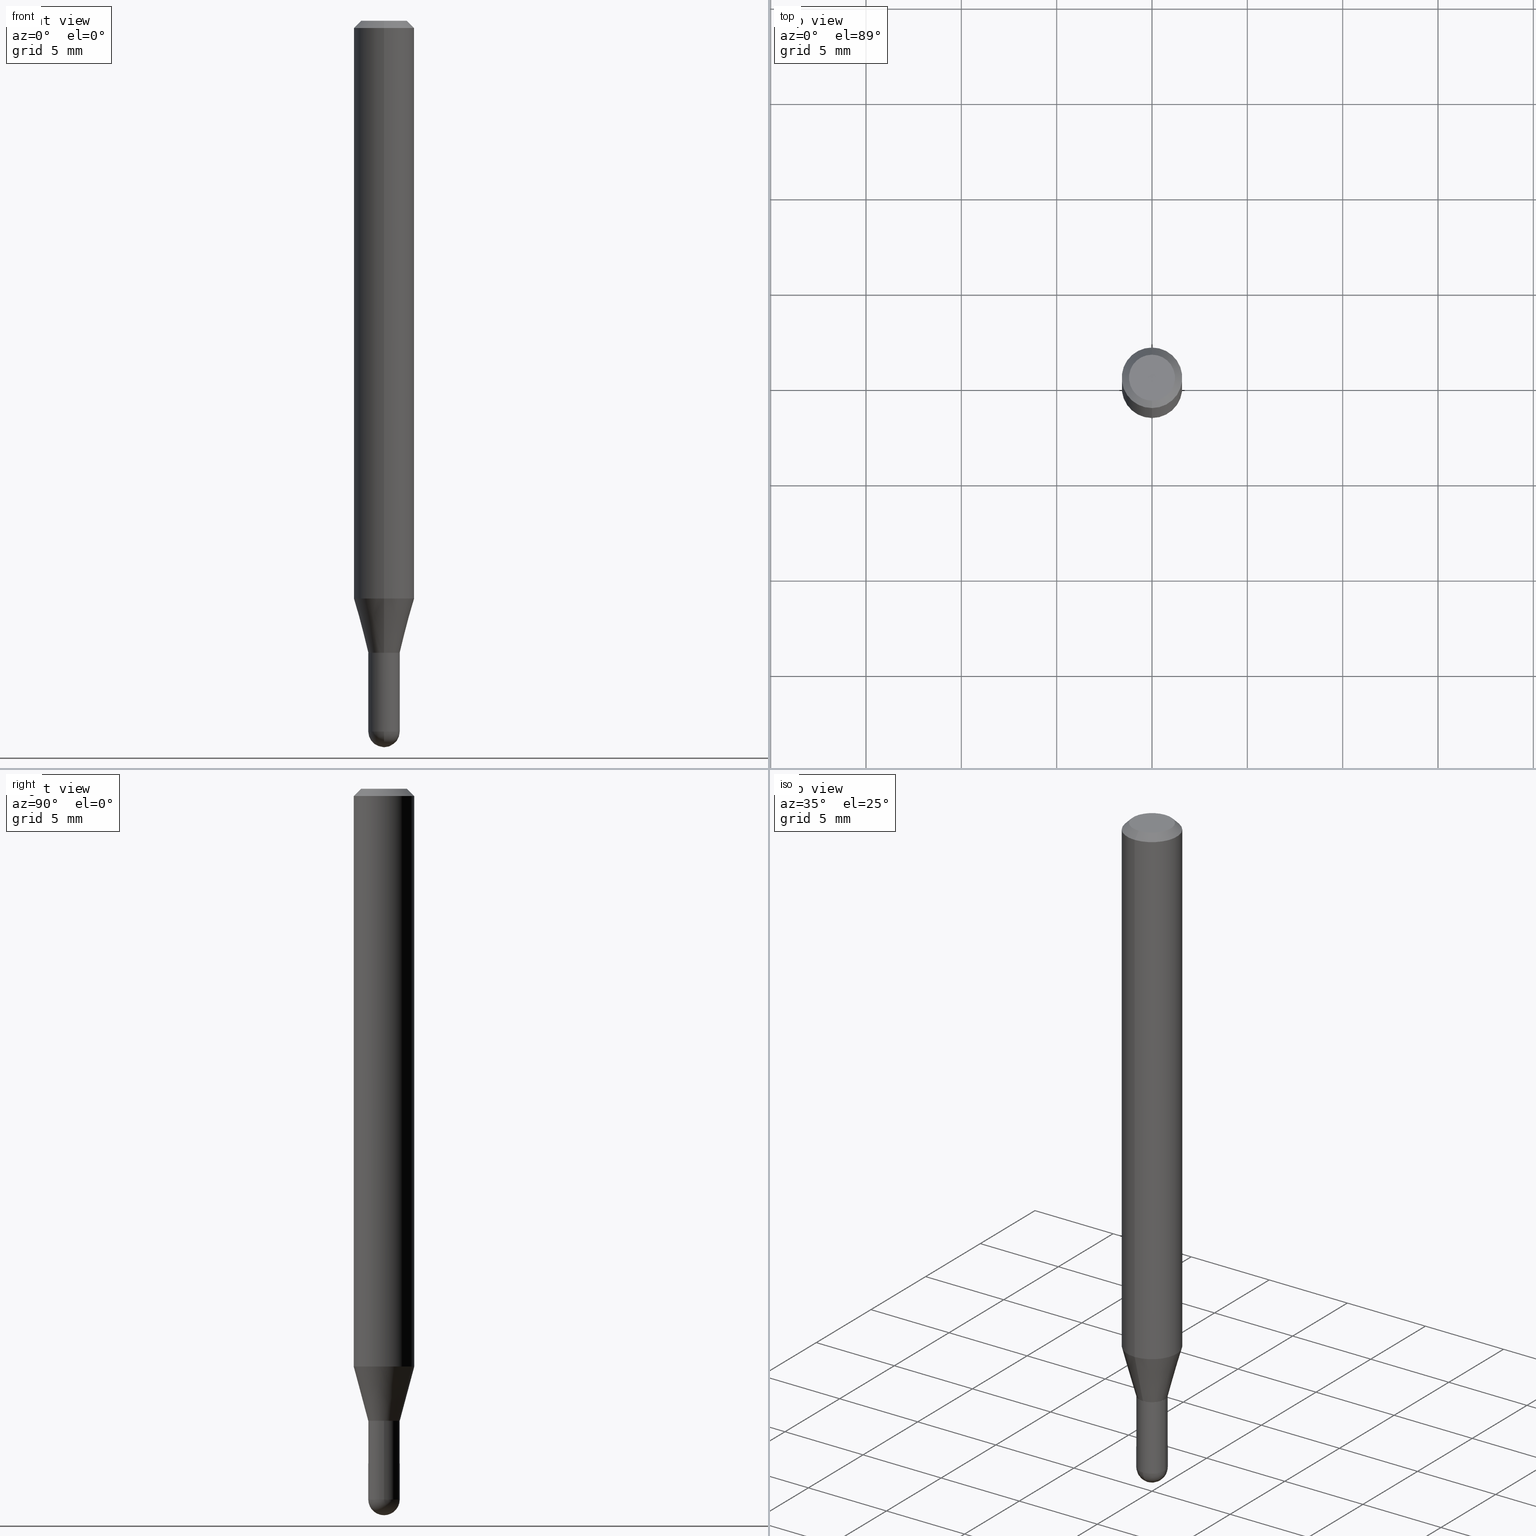
[diagram: canonical four-view strip — front | top / right | iso, engineering-drawing reading convention]
A machine part, canonical four-view strip (front | top / right | iso — engineering-drawing reading convention). The complete STEP part file that produces these views, byte-faithful:
ISO-10303-21;
HEADER;
FILE_DESCRIPTION (( 'STEP AP203' ),
    '1' );
FILE_NAME ('04440.STEP',
    '2024-03-08T19:32:58',
    ( '' ),
    ( '' ),
    'SwSTEP 2.0',
    'SolidWorks 2023',
    '' );
FILE_SCHEMA (( 'CONFIG_CONTROL_DESIGN' ));
ENDSEC;

DATA;
#1 = CARTESIAN_POINT ( 'NONE',  ( -4.364351673553916201E-16, -0.06250000000000000000, 2.182154729314660676E-16 ) ) ;
#2 = DIRECTION ( 'NONE',  ( -2.445492389004576288E-29, 3.491447566903457476E-15, 1.000000000000000000 ) ) ;
#3 = EDGE_LOOP ( 'NONE', ( #36, #139, #431, #99 ) ) ;
#4 = ADVANCED_FACE ( 'NONE', ( #68 ), #88, .T. ) ;
#5 = DIRECTION ( 'NONE',  ( -4.851104656540964275E-15, -0.7071067811865500152, -0.7071067811865450192 ) ) ;
#6 = ORIENTED_EDGE ( 'NONE', *, *, #207, .T. ) ;
#7 = EDGE_CURVE ( 'NONE', #39, #56, #328, .T. ) ;
#8 = PERSON ( 'UNSPECIFIED', 'UNSPECIFIED', 'UNSPECIFIED', ('UNSPECIFIED'), ('UNSPECIFIED'), ('UNSPECIFIED') ) ;
#9 = DIRECTION ( 'NONE',  ( -2.445468806185136597E-29, 3.491481338843145583E-15, 1.000000000000000000 ) ) ;
#10 = ORIENTED_EDGE ( 'NONE', *, *, #136, .T. ) ;
#11 = CIRCLE ( 'NONE', #283, 0.06250000000000000000 ) ;
#12 = SECURITY_CLASSIFICATION ( '', '', #181 ) ;
#13 = DIMENSIONAL_EXPONENTS ( 1.000000000000000000, 0.000000000000000000, 0.000000000000000000, 0.000000000000000000, 0.000000000000000000, 0.000000000000000000, 0.000000000000000000 ) ;
#14 = DIRECTION ( 'NONE',  ( -6.982962677686266711E-15, -1.000000000000000000, 3.491447566903458265E-15 ) ) ;
#15 = AXIS2_PLACEMENT_3D ( 'NONE', #314, #81, #280 ) ;
#16 = APPROVAL_PERSON_ORGANIZATION ( #293, #495, #253 ) ;
#17 = CARTESIAN_POINT ( 'NONE',  ( 3.190144821456470319E-29, -4.554593351025560896E-15, -1.304500000000000215 ) ) ;
#18 = APPLICATION_CONTEXT ( 'configuration controlled 3d designs of mechanical parts and assemblies' ) ;
#19 = CARTESIAN_POINT ( 'NONE',  ( 0.000000000000000000, 0.000000000000000000, 0.000000000000000000 ) ) ;
#20 = COORDINATED_UNIVERSAL_TIME_OFFSET ( 5, 0, .BEHIND. ) ;
#21 = EDGE_LOOP ( 'NONE', ( #258, #298, #172, #473 ) ) ;
#22 = EDGE_CURVE ( 'NONE', #56, #127, #244, .T. ) ;
#23 = DATE_TIME_ROLE ( 'creation_date' ) ;
#24 = CC_DESIGN_SECURITY_CLASSIFICATION ( #12, ( #268 ) ) ;
#25 = PERSON_AND_ORGANIZATION_ROLE ( 'creator' ) ;
#26 = DIRECTION ( 'NONE',  ( -6.982962677686265922E-15, -1.000000000000000000, 0.000000000000000000 ) ) ;
#27 = CIRCLE ( 'NONE', #59, 0.03250000000000000111 ) ;
#28 = LOCAL_TIME ( 14, 32, 58.00000000000000000, #226 ) ;
#29 = DIRECTION ( 'NONE',  ( -2.445468806185136597E-29, 3.491481338843145583E-15, 1.000000000000000000 ) ) ;
#30 = DIRECTION ( 'NONE',  ( -6.982962677686265922E-15, -1.000000000000000000, 0.000000000000000000 ) ) ;
#31 = ADVANCED_FACE ( 'NONE', ( #203 ), #198, .T. ) ;
#32 = ORIENTED_EDGE ( 'NONE', *, *, #186, .T. ) ;
#33 = EDGE_CURVE ( 'NONE', #393, #127, #62, .T. ) ;
#34 = DIRECTION ( 'NONE',  ( -6.982962677686265133E-15, -1.000000000000000000, 0.000000000000000000 ) ) ;
#35 = DIRECTION ( 'NONE',  ( -6.982962677686265133E-15, -1.000000000000000000, 0.000000000000000000 ) ) ;
#36 = ORIENTED_EDGE ( 'NONE', *, *, #22, .F. ) ;
#37 = FACE_OUTER_BOUND ( 'NONE', #357, .T. ) ;
#38 = DIRECTION ( 'NONE',  ( 2.438088387897960049E-29, -3.491481338843145188E-15, -1.000000000000000000 ) ) ;
#39 = VERTEX_POINT ( 'NONE', #310 ) ;
#40 = EDGE_CURVE ( 'NONE', #488, #289, #79, .T. ) ;
#41 = CARTESIAN_POINT ( 'NONE',  ( 0.000000000000000000, 0.000000000000000000, 0.000000000000000000 ) ) ;
#42 = DIRECTION ( 'NONE',  ( -2.445492389004576288E-29, 3.491447566903457082E-15, 1.000000000000000000 ) ) ;
#43 = CARTESIAN_POINT ( 'NONE',  ( 3.191336792071603685E-29, -4.556383147190305752E-15, -1.305000000000000160 ) ) ;
#44 = ORIENTED_EDGE ( 'NONE', *, *, #296, .T. ) ;
#45 = PRODUCT_RELATED_PRODUCT_CATEGORY ( 'detail', '', ( #325 ) ) ;
#46 = APPLICATION_CONTEXT ( 'configuration controlled 3d designs of mechanical parts and assemblies' ) ;
#47 = ORIENTED_EDGE ( 'NONE', *, *, #295, .F. ) ;
#48 = CARTESIAN_POINT ( 'NONE',  ( 4.440892098500919026E-16, 0.06249999999999995143, -0.01500000000000028394 ) ) ;
#49 = VECTOR ( 'NONE', #433, 39.37007874015748143 ) ;
#50 = CARTESIAN_POINT ( 'NONE',  ( 3.585946182636855061E-29, -5.127728966849546308E-15, -1.467500000000000027 ) ) ;
#51 = ORIENTED_EDGE ( 'NONE', *, *, #33, .T. ) ;
#52 = ORIENTED_EDGE ( 'NONE', *, *, #228, .T. ) ;
#53 = AXIS2_PLACEMENT_3D ( 'NONE', #204, #430, #278 ) ;
#54 = CC_DESIGN_PERSON_AND_ORGANIZATION_ASSIGNMENT ( #187, #25, ( #268 ) ) ;
#55 = CC_DESIGN_PERSON_AND_ORGANIZATION_ASSIGNMENT ( #417, #180, ( #12 ) ) ;
#56 = VERTEX_POINT ( 'NONE', #193 ) ;
#57 = CARTESIAN_POINT ( 'NONE',  ( 3.316907271900976096E-16, 0.04749999999999999362, -1.985946785376798961E-16 ) ) ;
#58 = CALENDAR_DATE ( 2024, 8, 3 ) ;
#59 = AXIS2_PLACEMENT_3D ( 'NONE', #233, #29, #192 ) ;
#60 = DATE_AND_TIME ( #500, #232 ) ;
#61 = DIRECTION ( 'NONE',  ( 6.982962677686265922E-15, 1.000000000000000000, -3.491447566903457082E-15 ) ) ;
#62 = LINE ( 'NONE', #188, #420 ) ;
#63 = CARTESIAN_POINT ( 'NONE',  ( -4.364351673553912750E-16, -0.06250000000000005551, -0.01499999999999984852 ) ) ;
#64 = DIRECTION ( 'NONE',  ( -6.982962677686265922E-15, -1.000000000000000000, 3.483106191921935554E-15 ) ) ;
#65 = AXIS2_PLACEMENT_3D ( 'NONE', #476, #441, #366 ) ;
#66 = DIRECTION ( 'NONE',  ( -6.982962677686265922E-15, -1.000000000000000000, 4.370956789862821150E-15 ) ) ;
#67 = EDGE_CURVE ( 'NONE', #252, #176, #496, .T. ) ;
#68 = FACE_OUTER_BOUND ( 'NONE', #237, .T. ) ;
#69 = ADVANCED_FACE ( 'NONE', ( #291 ), #214, .F. ) ;
#70 = DIRECTION ( 'NONE',  ( 6.982962677686265922E-15, 1.000000000000000000, -3.483106191921935554E-15 ) ) ;
#71 = CARTESIAN_POINT ( 'NONE',  ( 3.191367567650972338E-29, -4.556339074809012404E-15, -1.305000000000000160 ) ) ;
#72 = CARTESIAN_POINT ( 'NONE',  ( 2.309263891220684122E-16, 0.03249999999999488021, -1.467500000000000027 ) ) ;
#73 = VERTEX_POINT ( 'NONE', #211 ) ;
#74 = DIRECTION ( 'NONE',  ( 1.000000000000000000, -6.982962677686267499E-15, 4.876176775795936353E-29 ) ) ;
#75 = CARTESIAN_POINT ( 'NONE',  ( 4.364351673553919652E-16, 0.06249999999999995143, -0.01500000000000028394 ) ) ;
#76 = ORIENTED_EDGE ( 'NONE', *, *, #274, .T. ) ;
#77 = DIRECTION ( 'NONE',  ( -2.445492389004576288E-29, 3.491447566903457476E-15, 1.000000000000000000 ) ) ;
#78 = CIRCLE ( 'NONE', #191, 0.03200000000000000067 ) ;
#79 = LINE ( 'NONE', #245, #199 ) ;
#80 =( GEOMETRIC_REPRESENTATION_CONTEXT ( 3 ) GLOBAL_UNCERTAINTY_ASSIGNED_CONTEXT ( ( #89 ) ) GLOBAL_UNIT_ASSIGNED_CONTEXT ( ( #474, #171, #178 ) ) REPRESENTATION_CONTEXT ( 'NONE', 'WORKASPACE' ) );
#81 = DIRECTION ( 'NONE',  ( -2.445468806185136597E-29, 3.491481338843145583E-15, 1.000000000000000000 ) ) ;
#82 = EDGE_LOOP ( 'NONE', ( #209, #205, #44, #197, #138 ) ) ;
#83 = FACE_OUTER_BOUND ( 'NONE', #281, .T. ) ;
#84 = ORIENTED_EDGE ( 'NONE', *, *, #373, .F. ) ;
#85 = DIRECTION ( 'NONE',  ( -4.937700262164674260E-15, -0.7071067811865632269, 0.7071067811865319186 ) ) ;
#86 = CARTESIAN_POINT ( 'NONE',  ( 0.03250000000000000111, -4.783329434215109105E-15, -1.305000000000000160 ) ) ;
#87 = FACE_OUTER_BOUND ( 'NONE', #21, .T. ) ;
#88 = CONICAL_SURFACE ( 'NONE', #100, 0.03249999999999991784, 0.2617993877991578455 ) ;
#89 = UNCERTAINTY_MEASURE_WITH_UNIT (LENGTH_MEASURE( 1.000000000000000082E-05 ), #474, 'distance_accuracy_value', 'NONE');
#90 = AXIS2_PLACEMENT_3D ( 'NONE', #432, #9, #238 ) ;
#91 = EDGE_CURVE ( 'NONE', #176, #252, #489, .T. ) ;
#92 = CIRCLE ( 'NONE', #390, 0.03200000000000000067 ) ;
#93 = DIRECTION ( 'NONE',  ( -6.982962677686265922E-15, -1.000000000000000000, 0.000000000000000000 ) ) ;
#94 = ORIENTED_EDGE ( 'NONE', *, *, #151, .T. ) ;
#95 = ORIENTED_EDGE ( 'NONE', *, *, #7, .T. ) ;
#96 = APPROVAL ( #146, 'UNSPECIFIED' ) ;
#97 = ADVANCED_FACE ( 'NONE', ( #163 ), #249, .T. ) ;
#98 = APPROVAL_STATUS ( 'not_yet_approved' ) ;
#99 = ORIENTED_EDGE ( 'NONE', *, *, #389, .T. ) ;
#100 = AXIS2_PLACEMENT_3D ( 'NONE', #71, #122, #356 ) ;
#101 = CIRCLE ( 'NONE', #90, 0.03250000000000000111 ) ;
#102 = AXIS2_PLACEMENT_3D ( 'NONE', #120, #38, #326 ) ;
#103 = CARTESIAN_POINT ( 'NONE',  ( 3.191367567650972338E-29, -4.556339074809012404E-15, -1.305000000000000160 ) ) ;
#104 = PERSON_AND_ORGANIZATION ( #8, #422 ) ;
#105 = DATE_AND_TIME ( #384, #506 ) ;
#106 = DIRECTION ( 'NONE',  ( 1.839019923739652380E-15, 0.2588190451025322858, 0.9659258262890650926 ) ) ;
#107 = AXIS2_PLACEMENT_3D ( 'NONE', #103, #382, #307 ) ;
#108 = DIRECTION ( 'NONE',  ( -2.445492389004576288E-29, 3.491447566903457476E-15, 1.000000000000000000 ) ) ;
#109 = SPHERICAL_SURFACE ( 'NONE', #173, 0.03250000000000000111 ) ;
#110 = EDGE_CURVE ( 'NONE', #158, #354, #355, .T. ) ;
#111 = ADVANCED_FACE ( 'NONE', ( #361 ), #321, .T. ) ;
#112 = CARTESIAN_POINT ( 'NONE',  ( 3.668238583506880511E-31, -5.237171350355208844E-17, -0.01500000000000006710 ) ) ;
#113 = CLOSED_SHELL ( 'NONE', ( #97, #461, #481, #353, #111 ) ) ;
#114 = VECTOR ( 'NONE', #371, 39.37007874015748143 ) ;
#115 = CARTESIAN_POINT ( 'NONE',  ( -4.364351673553626788E-16, -0.06250000000000420497, -1.193038475772937090 ) ) ;
#116 = CIRCLE ( 'NONE', #491, 0.03249999999999964723 ) ;
#117 = CARTESIAN_POINT ( 'NONE',  ( -2.269462870247678045E-16, -0.03250000000000512895, -1.467500000000000027 ) ) ;
#118 = ORIENTED_EDGE ( 'NONE', *, *, #460, .T. ) ;
#119 = CARTESIAN_POINT ( 'NONE',  ( 1.601842468316731120E-45, -2.286962336792868039E-31, -6.550183821953140246E-17 ) ) ;
#120 = CARTESIAN_POINT ( 'NONE',  ( 2.269462870248355479E-16, 0.03249999999999544226, -1.305000000000000160 ) ) ;
#121 = EDGE_LOOP ( 'NONE', ( #129, #451, #195, #76 ) ) ;
#122 = DIRECTION ( 'NONE',  ( -2.445492389004576288E-29, 3.491447566903457476E-15, 1.000000000000000000 ) ) ;
#123 = LINE ( 'NONE', #272, #360 ) ;
#124 = VERTEX_POINT ( 'NONE', #509 ) ;
#125 = AXIS2_PLACEMENT_3D ( 'NONE', #239, #206, #74 ) ;
#126 = CARTESIAN_POINT ( 'NONE',  ( 3.668238583506880511E-31, -5.237171350355208844E-17, -0.01500000000000006710 ) ) ;
#127 = VERTEX_POINT ( 'NONE', #368 ) ;
#128 = DIRECTION ( 'NONE',  ( 7.105427357601001859E-15, 1.000000000000000000, 0.000000000000000000 ) ) ;
#129 = ORIENTED_EDGE ( 'NONE', *, *, #424, .F. ) ;
#130 = CC_DESIGN_PERSON_AND_ORGANIZATION_ASSIGNMENT ( #462, #269, ( #268 ) ) ;
#131 = EDGE_CURVE ( 'NONE', #158, #73, #505, .T. ) ;
#132 = CARTESIAN_POINT ( 'NONE',  ( 1.601842468316731120E-45, -2.286962336792868039E-31, -6.550183821953140246E-17 ) ) ;
#133 = ORIENTED_EDGE ( 'NONE', *, *, #131, .T. ) ;
#134 = AXIS2_PLACEMENT_3D ( 'NONE', #374, #485, #128 ) ;
#135 = APPROVAL_PERSON_ORGANIZATION ( #104, #96, #185 ) ;
#136 = EDGE_CURVE ( 'NONE', #219, #289, #27, .T. ) ;
#137 = CARTESIAN_POINT ( 'NONE',  ( -2.269462870247700725E-16, -0.03250000000000431710, -1.304500000000000215 ) ) ;
#138 = ORIENTED_EDGE ( 'NONE', *, *, #445, .F. ) ;
#139 = ORIENTED_EDGE ( 'NONE', *, *, #7, .F. ) ;
#140 = PLANE ( 'NONE',  #141 ) ;
#141 = AXIS2_PLACEMENT_3D ( 'NONE', #57, #300, #61 ) ;
#142 = DATE_AND_TIME ( #265, #284 ) ;
#143 = FACE_OUTER_BOUND ( 'NONE', #277, .T. ) ;
#144 = DATE_TIME_ROLE ( 'classification_date' ) ;
#145 = CARTESIAN_POINT ( 'NONE',  ( 3.588725473076687933E-29, -5.123748864752316500E-15, -1.467500000000000027 ) ) ;
#146 = APPROVAL_STATUS ( 'not_yet_approved' ) ;
#147 = DIRECTION ( 'NONE',  ( -2.445492389004576288E-29, 3.491447566903457476E-15, 1.000000000000000000 ) ) ;
#148 = VECTOR ( 'NONE', #106, 39.37007874015748143 ) ;
#149 = DIRECTION ( 'NONE',  ( 1.000000000000000000, -6.982962677686265922E-15, 4.883557194083112340E-29 ) ) ;
#150 = CC_DESIGN_DATE_AND_TIME_ASSIGNMENT ( #105, #23, ( #250 ) ) ;
#151 = EDGE_CURVE ( 'NONE', #39, #158, #153, .T. ) ;
#152 = FACE_OUTER_BOUND ( 'NONE', #121, .T. ) ;
#153 = LINE ( 'NONE', #200, #266 ) ;
#154 = LENGTH_MEASURE_WITH_UNIT ( LENGTH_MEASURE( 0.02539999999999999897 ), #194 );
#155 = ORIENTED_EDGE ( 'NONE', *, *, #91, .F. ) ;
#156 = PLANE ( 'NONE',  #102 ) ;
#157 = ORIENTED_EDGE ( 'NONE', *, *, #376, .F. ) ;
#158 = VERTEX_POINT ( 'NONE', #115 ) ;
#159 = DIRECTION ( 'NONE',  ( -2.445492389004576288E-29, 3.491447566903457476E-15, 1.000000000000000000 ) ) ;
#160 = CARTESIAN_POINT ( 'NONE',  ( 3.664034273617955586E-29, -5.243192161410562493E-15, -1.500000000000000222 ) ) ;
#161 = ORIENTED_EDGE ( 'NONE', *, *, #91, .T. ) ;
#162 = CARTESIAN_POINT ( 'NONE',  ( -2.234548056859285938E-16, -0.03200000000000455258, -1.304999999999999938 ) ) ;
#163 = FACE_OUTER_BOUND ( 'NONE', #455, .T. ) ;
#164 = AXIS2_PLACEMENT_3D ( 'NONE', #352, #108, #64 ) ;
#165 = AXIS2_PLACEMENT_3D ( 'NONE', #404, #392, #208 ) ;
#166 = PERSON_AND_ORGANIZATION_ROLE ( 'design_owner' ) ;
#167 = ORIENTED_EDGE ( 'NONE', *, *, #409, .T. ) ;
#168 = ADVANCED_FACE ( 'NONE', ( #37 ), #333, .T. ) ;
#169 = EDGE_CURVE ( 'NONE', #39, #179, #454, .T. ) ;
#170 = DIRECTION ( 'NONE',  ( -1.000000000000000000, 6.982962677686265922E-15, -4.883557194083112340E-29 ) ) ;
#171 =( NAMED_UNIT ( * ) PLANE_ANGLE_UNIT ( ) SI_UNIT ( $, .RADIAN. ) );
#172 = ORIENTED_EDGE ( 'NONE', *, *, #248, .T. ) ;
#173 = AXIS2_PLACEMENT_3D ( 'NONE', #387, #149, #26 ) ;
#174 = CARTESIAN_POINT ( 'NONE',  ( 0.000000000000000000, 0.000000000000000000, 0.000000000000000000 ) ) ;
#175 = DESIGN_CONTEXT ( 'detailed design', #46, 'design' ) ;
#176 = VERTEX_POINT ( 'NONE', #213 ) ;
#177 = CARTESIAN_POINT ( 'NONE',  ( 2.917566512292338877E-29, -4.165431283459630841E-15, -1.193038475772937312 ) ) ;
#178 =( NAMED_UNIT ( * ) SI_UNIT ( $, .STERADIAN. ) SOLID_ANGLE_UNIT ( ) );
#179 = VERTEX_POINT ( 'NONE', #137 ) ;
#180 = PERSON_AND_ORGANIZATION_ROLE ( 'classification_officer' ) ;
#181 = SECURITY_CLASSIFICATION_LEVEL ( 'unclassified' ) ;
#182 = CYLINDRICAL_SURFACE ( 'NONE', #426, 0.06250000000000000000 ) ;
#183 = AXIS2_PLACEMENT_3D ( 'NONE', #50, #170, #93 ) ;
#184 = CC_DESIGN_PERSON_AND_ORGANIZATION_ASSIGNMENT ( #341, #419, ( #250 ) ) ;
#185 = APPROVAL_ROLE ( '' ) ;
#186 = EDGE_CURVE ( 'NONE', #487, #405, #370, .T. ) ;
#187 = PERSON_AND_ORGANIZATION ( #8, #422 ) ;
#188 = CARTESIAN_POINT ( 'NONE',  ( 2.273736754432639145E-16, 0.03199999999999544181, -1.304999999999999938 ) ) ;
#189 = EDGE_CURVE ( 'NONE', #487, #416, #254, .T. ) ;
#190 = DIRECTION ( 'NONE',  ( 1.000000000000000000, -6.982962677686258033E-15, 0.000000000000000000 ) ) ;
#191 = AXIS2_PLACEMENT_3D ( 'NONE', #362, #2, #35 ) ;
#192 = DIRECTION ( 'NONE',  ( 1.000000000000000000, -6.982962677686258033E-15, 0.000000000000000000 ) ) ;
#193 = CARTESIAN_POINT ( 'NONE',  ( 3.375077994860778155E-16, 0.03249999999999536593, -1.305000000000000160 ) ) ;
#194 =( LENGTH_UNIT ( ) NAMED_UNIT ( * ) SI_UNIT ( $, .METRE. ) );
#195 = ORIENTED_EDGE ( 'NONE', *, *, #388, .T. ) ;
#196 = DIRECTION ( 'NONE',  ( -6.982962677686265922E-15, -1.000000000000000000, 3.483106191921935554E-15 ) ) ;
#197 = ORIENTED_EDGE ( 'NONE', *, *, #465, .T. ) ;
#198 = CONICAL_SURFACE ( 'NONE', #267, 0.06250000000000000000, 0.7853981633974483900 ) ;
#199 = VECTOR ( 'NONE', #447, 39.37007874015748143 ) ;
#200 = CARTESIAN_POINT ( 'NONE',  ( -2.269462870247711572E-16, -0.03250000000000446976, -1.305000000000000160 ) ) ;
#201 = CARTESIAN_POINT ( 'NONE',  ( -0.03250000000000000111, -4.609139616849279150E-15, -1.467500000000000027 ) ) ;
#202 = ORIENTED_EDGE ( 'NONE', *, *, #210, .T. ) ;
#203 = FACE_OUTER_BOUND ( 'NONE', #512, .T. ) ;
#204 = CARTESIAN_POINT ( 'NONE',  ( 3.191367567650972338E-29, -4.556339074809012404E-15, -1.305000000000000160 ) ) ;
#205 = ORIENTED_EDGE ( 'NONE', *, *, #373, .T. ) ;
#206 = DIRECTION ( 'NONE',  ( -2.445468806185136597E-29, 3.491481338843145583E-15, 1.000000000000000000 ) ) ;
#207 = EDGE_CURVE ( 'NONE', #73, #158, #11, .T. ) ;
#208 = DIRECTION ( 'NONE',  ( -6.982962677686266711E-15, -1.000000000000000000, 3.491447566903457476E-15 ) ) ;
#209 = ORIENTED_EDGE ( 'NONE', *, *, #40, .F. ) ;
#210 = EDGE_CURVE ( 'NONE', #127, #179, #453, .T. ) ;
#211 = CARTESIAN_POINT ( 'NONE',  ( 4.440892098500915082E-16, 0.06249999999999581585, -1.193038475772937534 ) ) ;
#212 = ORIENTED_EDGE ( 'NONE', *, *, #189, .T. ) ;
#213 = CARTESIAN_POINT ( 'NONE',  ( -3.773273898774340269E-16, -0.04749999999999999362, 1.003419212083828355E-16 ) ) ;
#214 = CYLINDRICAL_SURFACE ( 'NONE', #231, 0.03249999999999977907 ) ;
#215 = AXIS2_PLACEMENT_3D ( 'NONE', #132, #77, #243 ) ;
#216 = ORIENTED_EDGE ( 'NONE', *, *, #131, .F. ) ;
#217 = MANIFOLD_SOLID_BREP ( 'Body-Move/Copy2[1]', #113 ) ;
#218 = COORDINATED_UNIVERSAL_TIME_OFFSET ( 5, 0, .BEHIND. ) ;
#219 = VERTEX_POINT ( 'NONE', #86 ) ;
#220 = APPROVAL_ROLE ( '' ) ;
#221 = ADVANCED_FACE ( 'NONE', ( #87 ), #297, .T. ) ;
#222 = ADVANCED_FACE ( 'NONE', ( #317 ), #471, .F. ) ;
#223 = APPROVAL_DATE_TIME ( #347, #282 ) ;
#224 = VECTOR ( 'NONE', #42, 39.37007874015748143 ) ;
#225 = AXIS2_PLACEMENT_3D ( 'NONE', #386, #147, #418 ) ;
#226 = COORDINATED_UNIVERSAL_TIME_OFFSET ( 5, 0, .BEHIND. ) ;
#227 = LINE ( 'NONE', #466, #148 ) ;
#228 = EDGE_CURVE ( 'NONE', #416, #488, #101, .T. ) ;
#229 = MANIFOLD_SOLID_BREP ( 'Body-Move/Copy2[2]', #410 ) ;
#230 = CARTESIAN_POINT ( 'NONE',  ( -2.234548056859285938E-16, -0.03200000000000455258, -1.304999999999999938 ) ) ;
#231 = AXIS2_PLACEMENT_3D ( 'NONE', #19, #340, #493 ) ;
#232 = LOCAL_TIME ( 14, 32, 58.00000000000000000, #20 ) ;
#233 = CARTESIAN_POINT ( 'NONE',  ( 3.191336792071603685E-29, -4.556383147190305752E-15, -1.305000000000000160 ) ) ;
#234 = CARTESIAN_POINT ( 'NONE',  ( 3.191367567650971778E-29, -4.556339074809011616E-15, -1.304999999999999938 ) ) ;
#235 = ORIENTED_EDGE ( 'NONE', *, *, #151, .F. ) ;
#236 = CARTESIAN_POINT ( 'NONE',  ( 3.585946182636855061E-29, -5.127728966849546308E-15, -1.467500000000000027 ) ) ;
#237 = EDGE_LOOP ( 'NONE', ( #47, #118, #94, #279 ) ) ;
#238 = DIRECTION ( 'NONE',  ( 1.000000000000000000, -6.982962677686258033E-15, 0.000000000000000000 ) ) ;
#239 = CARTESIAN_POINT ( 'NONE',  ( 0.000000000000000000, 0.000000000000000000, 0.000000000000000000 ) ) ;
#240 = DIRECTION ( 'NONE',  ( -2.445468806185136597E-29, 3.491481338843145583E-15, 1.000000000000000000 ) ) ;
#241 = EDGE_LOOP ( 'NONE', ( #318, #161 ) ) ;
#242 = CIRCLE ( 'NONE', #15, 0.03250000000000000111 ) ;
#243 = DIRECTION ( 'NONE',  ( -6.982962677686266711E-15, -1.000000000000000000, 3.491447566903458265E-15 ) ) ;
#244 = LINE ( 'NONE', #477, #224 ) ;
#245 = CARTESIAN_POINT ( 'NONE',  ( -0.03250000000000000111, 2.309263891220325683E-16, -1.598653904332844407E-30 ) ) ;
#246 = DIRECTION ( 'NONE',  ( -2.445492389004576288E-29, 3.491447566903457476E-15, 1.000000000000000000 ) ) ;
#247 = ORIENTED_EDGE ( 'NONE', *, *, #110, .F. ) ;
#248 = EDGE_CURVE ( 'NONE', #315, #179, #359, .T. ) ;
#249 = CYLINDRICAL_SURFACE ( 'NONE', #125, 0.03250000000000000111 ) ;
#250 = PRODUCT_DEFINITION ( 'UNKNOWN', '', #268, #175 ) ;
#251 = FACE_OUTER_BOUND ( 'NONE', #327, .T. ) ;
#252 = VERTEX_POINT ( 'NONE', #406 ) ;
#253 = APPROVAL_ROLE ( '' ) ;
#254 = CIRCLE ( 'NONE', #134, 0.03250000000000000111 ) ;
#255 = PERSON_AND_ORGANIZATION ( #8, #422 ) ;
#256 = DIRECTION ( 'NONE',  ( -2.445492389004576288E-29, 3.491447566903457476E-15, 1.000000000000000000 ) ) ;
#257 = ORIENTED_EDGE ( 'NONE', *, *, #388, .F. ) ;
#258 = ORIENTED_EDGE ( 'NONE', *, *, #33, .F. ) ;
#259 = CIRCLE ( 'NONE', #306, 0.03250000000000000111 ) ;
#260 = VERTEX_POINT ( 'NONE', #48 ) ;
#261 = EDGE_CURVE ( 'NONE', #124, #416, #259, .T. ) ;
#262 = CARTESIAN_POINT ( 'NONE',  ( 0.000000000000000000, 0.000000000000000000, 0.000000000000000000 ) ) ;
#263 = SHAPE_DEFINITION_REPRESENTATION ( #367, #457 ) ;
#264 = CARTESIAN_POINT ( 'NONE',  ( 3.588725473076687933E-29, -5.123748864752316500E-15, -1.467500000000000027 ) ) ;
#265 = CALENDAR_DATE ( 2024, 8, 3 ) ;
#266 = VECTOR ( 'NONE', #468, 39.37007874015748854 ) ;
#267 = AXIS2_PLACEMENT_3D ( 'NONE', #442, #492, #385 ) ;
#268 = PRODUCT_DEFINITION_FORMATION_WITH_SPECIFIED_SOURCE ( 'ANY', '', #325, .NOT_KNOWN. ) ;
#269 = PERSON_AND_ORGANIZATION_ROLE ( 'design_supplier' ) ;
#270 = FACE_OUTER_BOUND ( 'NONE', #484, .T. ) ;
#271 = CARTESIAN_POINT ( 'NONE',  ( 2.917566512292338877E-29, -4.165431283459630841E-15, -1.193038475772937312 ) ) ;
#272 = CARTESIAN_POINT ( 'NONE',  ( 0.03250000000000000111, -2.269462870248036977E-16, 1.584757452133679343E-30 ) ) ;
#273 = CARTESIAN_POINT ( 'NONE',  ( 3.191367567650971778E-29, -4.556339074809011616E-15, -1.304999999999999938 ) ) ;
#274 = EDGE_CURVE ( 'NONE', #260, #354, #415, .T. ) ;
#275 = ADVANCED_FACE ( 'NONE', ( #499 ), #140, .F. ) ;
#276 = DIRECTION ( 'NONE',  ( -6.982962677686265133E-15, -1.000000000000000000, 0.000000000000000000 ) ) ;
#277 = EDGE_LOOP ( 'NONE', ( #95, #286, #216, #235 ) ) ;
#278 = DIRECTION ( 'NONE',  ( -6.982962677686265922E-15, -1.000000000000000000, 0.000000000000000000 ) ) ;
#279 = ORIENTED_EDGE ( 'NONE', *, *, #207, .F. ) ;
#280 = DIRECTION ( 'NONE',  ( 1.000000000000000000, -6.982962677686258033E-15, 0.000000000000000000 ) ) ;
#281 = EDGE_LOOP ( 'NONE', ( #10, #403 ) ) ;
#282 = APPROVAL ( #305, 'UNSPECIFIED' ) ;
#283 = AXIS2_PLACEMENT_3D ( 'NONE', #177, #256, #412 ) ;
#284 = LOCAL_TIME ( 14, 32, 58.00000000000000000, #303 ) ;
#285 = LINE ( 'NONE', #427, #351 ) ;
#286 = ORIENTED_EDGE ( 'NONE', *, *, #295, .T. ) ;
#287 = DIRECTION ( 'NONE',  ( -6.982962677686265922E-15, -1.000000000000000000, 0.000000000000000000 ) ) ;
#288 = ORIENTED_EDGE ( 'NONE', *, *, #274, .F. ) ;
#289 = VERTEX_POINT ( 'NONE', #302 ) ;
#290 = LOCAL_TIME ( 14, 32, 58.00000000000000000, #218 ) ;
#291 = FACE_OUTER_BOUND ( 'NONE', #3, .T. ) ;
#292 = ORIENTED_EDGE ( 'NONE', *, *, #389, .F. ) ;
#293 = PERSON_AND_ORGANIZATION ( #8, #422 ) ;
#294 = ORIENTED_EDGE ( 'NONE', *, *, #465, .F. ) ;
#295 = EDGE_CURVE ( 'NONE', #56, #73, #227, .T. ) ;
#296 = EDGE_CURVE ( 'NONE', #405, #124, #421, .T. ) ;
#297 = CONICAL_SURFACE ( 'NONE', #349, 0.03200000000000000067, 0.7853981633974739252 ) ;
#298 = ORIENTED_EDGE ( 'NONE', *, *, #423, .T. ) ;
#299 = CC_DESIGN_APPROVAL ( #96, ( #12 ) ) ;
#300 = DIRECTION ( 'NONE',  ( 2.445492389004576007E-29, -3.491447566903457082E-15, -1.000000000000000000 ) ) ;
#301 = APPROVAL_DATE_TIME ( #142, #96 ) ;
#302 = CARTESIAN_POINT ( 'NONE',  ( -0.03250000000000000111, -4.609139616849279150E-15, -1.305000000000000160 ) ) ;
#303 = COORDINATED_UNIVERSAL_TIME_OFFSET ( 5, 0, .BEHIND. ) ;
#304 = FACE_OUTER_BOUND ( 'NONE', #320, .T. ) ;
#305 = APPROVAL_STATUS ( 'not_yet_approved' ) ;
#306 = AXIS2_PLACEMENT_3D ( 'NONE', #264, #501, #190 ) ;
#307 = DIRECTION ( 'NONE',  ( -6.982962677686265922E-15, -1.000000000000000000, 0.000000000000000000 ) ) ;
#308 = CIRCLE ( 'NONE', #53, 0.03249999999999991784 ) ;
#309 = CARTESIAN_POINT ( 'NONE',  ( 4.440892098500625669E-16, 0.06250000000000000000, -2.182154729314660676E-16 ) ) ;
#310 = CARTESIAN_POINT ( 'NONE',  ( -2.269462870247711572E-16, -0.03250000000000446976, -1.305000000000000160 ) ) ;
#311 = DIRECTION ( 'NONE',  ( 1.000000000000000000, -6.982962677686258033E-15, 0.000000000000000000 ) ) ;
#312 = ADVANCED_FACE ( 'NONE', ( #304 ), #182, .T. ) ;
#313 = ADVANCED_FACE ( 'NONE', ( #348 ), #504, .T. ) ;
#314 = CARTESIAN_POINT ( 'NONE',  ( 3.588725473076687933E-29, -5.123748864752316500E-15, -1.467500000000000027 ) ) ;
#315 = VERTEX_POINT ( 'NONE', #230 ) ;
#316 = AXIS2_PLACEMENT_3D ( 'NONE', #17, #450, #287 ) ;
#317 = FACE_OUTER_BOUND ( 'NONE', #479, .T. ) ;
#318 = ORIENTED_EDGE ( 'NONE', *, *, #67, .T. ) ;
#319 = DIRECTION ( 'NONE',  ( -2.445492389004576288E-29, 3.491447566903457082E-15, 1.000000000000000000 ) ) ;
#320 = EDGE_LOOP ( 'NONE', ( #133, #510, #408, #247 ) ) ;
#321 = CYLINDRICAL_SURFACE ( 'NONE', #329, 0.03250000000000000111 ) ;
#322 = CYLINDRICAL_SURFACE ( 'NONE', #165, 0.03249999999999977907 ) ;
#323 = ORIENTED_EDGE ( 'NONE', *, *, #110, .T. ) ;
#324 = DIRECTION ( 'NONE',  ( -6.982962677686265133E-15, -1.000000000000000000, 0.000000000000000000 ) ) ;
#325 = PRODUCT ( '04440', '04440', '', ( #378 ) ) ;
#326 = DIRECTION ( 'NONE',  ( -1.000000000000000000, 6.982962677686265922E-15, -4.876176775795935793E-29 ) ) ;
#327 = EDGE_LOOP ( 'NONE', ( #414, #380, #202, #444 ) ) ;
#328 = CIRCLE ( 'NONE', #452, 0.03249999999999991784 ) ;
#329 = AXIS2_PLACEMENT_3D ( 'NONE', #41, #391, #398 ) ;
#330 = CIRCLE ( 'NONE', #345, 0.06250000000000000000 ) ;
#331 = ORIENTED_EDGE ( 'NONE', *, *, #261, .T. ) ;
#332 = ORIENTED_EDGE ( 'NONE', *, *, #424, .T. ) ;
#333 = CONICAL_SURFACE ( 'NONE', #343, 0.03200000000000000067, 0.7853981633974739252 ) ;
#334 = CIRCLE ( 'NONE', #470, 0.03250000000000000111 ) ;
#335 = AXIS2_PLACEMENT_3D ( 'NONE', #174, #337, #486 ) ;
#336 = APPLICATION_PROTOCOL_DEFINITION ( 'international standard', 'config_control_design', 1994, #18 ) ;
#337 = DIRECTION ( 'NONE',  ( 0.000000000000000000, 0.000000000000000000, 1.000000000000000000 ) ) ;
#338 = ADVANCED_FACE ( 'NONE', ( #143 ), #490, .T. ) ;
#339 = CC_DESIGN_PERSON_AND_ORGANIZATION_ASSIGNMENT ( #255, #166, ( #325 ) ) ;
#340 = DIRECTION ( 'NONE',  ( -2.445492389004576288E-29, 3.491447566903457476E-15, 1.000000000000000000 ) ) ;
#341 = PERSON_AND_ORGANIZATION ( #8, #422 ) ;
#342 = ORIENTED_EDGE ( 'NONE', *, *, #248, .F. ) ;
#343 = AXIS2_PLACEMENT_3D ( 'NONE', #273, #394, #34 ) ;
#344 = CALENDAR_DATE ( 2024, 8, 3 ) ;
#345 = AXIS2_PLACEMENT_3D ( 'NONE', #112, #438, #196 ) ;
#346 = DIRECTION ( 'NONE',  ( -6.982962677686265922E-15, -1.000000000000000000, 3.491447566903457082E-15 ) ) ;
#347 = DATE_AND_TIME ( #58, #290 ) ;
#348 = FACE_OUTER_BOUND ( 'NONE', #369, .T. ) ;
#349 = AXIS2_PLACEMENT_3D ( 'NONE', #429, #436, #324 ) ;
#350 = LINE ( 'NONE', #309, #401 ) ;
#351 = VECTOR ( 'NONE', #5, 39.37007874015748143 ) ;
#352 = CARTESIAN_POINT ( 'NONE',  ( 3.668238583506880511E-31, -5.237171350355208844E-17, -0.01500000000000006710 ) ) ;
#353 = ADVANCED_FACE ( 'NONE', ( #270 ), #109, .T. ) ;
#354 = VERTEX_POINT ( 'NONE', #63 ) ;
#355 = LINE ( 'NONE', #1, #49 ) ;
#356 = DIRECTION ( 'NONE',  ( -6.982962677686265922E-15, -1.000000000000000000, 0.000000000000000000 ) ) ;
#357 = EDGE_LOOP ( 'NONE', ( #439, #51, #292, #342 ) ) ;
#358 = AXIS2_PLACEMENT_3D ( 'NONE', #145, #507, #459 ) ;
#359 = LINE ( 'NONE', #162, #383 ) ;
#360 = VECTOR ( 'NONE', #434, 39.37007874015748143 ) ;
#361 = FACE_OUTER_BOUND ( 'NONE', #82, .T. ) ;
#362 = CARTESIAN_POINT ( 'NONE',  ( 3.191367567650971778E-29, -4.556339074809011616E-15, -1.304999999999999938 ) ) ;
#363 = ORIENTED_EDGE ( 'NONE', *, *, #40, .T. ) ;
#364 = FACE_OUTER_BOUND ( 'NONE', #397, .T. ) ;
#365 = ORIENTED_EDGE ( 'NONE', *, *, #296, .F. ) ;
#366 = DIRECTION ( 'NONE',  ( -6.982962677686265922E-15, -1.000000000000000000, 3.491447566903457082E-15 ) ) ;
#367 = PRODUCT_DEFINITION_SHAPE ( 'NONE', 'NONE',  #250 ) ;
#368 = CARTESIAN_POINT ( 'NONE',  ( 2.309263891220611152E-16, 0.03249999999999498429, -1.304500000000000215 ) ) ;
#369 = EDGE_LOOP ( 'NONE', ( #494, #6, #323, #288 ) ) ;
#370 = CIRCLE ( 'NONE', #183, 0.03250000000000000111 ) ;
#371 = DIRECTION ( 'NONE',  ( -2.445492389004576288E-29, 3.491447566903457082E-15, 1.000000000000000000 ) ) ;
#372 = EDGE_CURVE ( 'NONE', #73, #260, #350, .T. ) ;
#373 = EDGE_CURVE ( 'NONE', #488, #405, #242, .T. ) ;
#374 = CARTESIAN_POINT ( 'NONE',  ( 3.585946182636855061E-29, -5.127728966849546308E-15, -1.467500000000000027 ) ) ;
#375 = AXIS2_PLACEMENT_3D ( 'NONE', #271, #425, #66 ) ;
#376 = EDGE_CURVE ( 'NONE', #315, #393, #78, .T. ) ;
#377 = CONICAL_SURFACE ( 'NONE', #440, 0.06250000000000000000, 0.7853981633974483900 ) ;
#378 = MECHANICAL_CONTEXT ( 'NONE', #18, 'mechanical' ) ;
#379 = PERSON_AND_ORGANIZATION ( #8, #422 ) ;
#380 = ORIENTED_EDGE ( 'NONE', *, *, #22, .T. ) ;
#381 = COORDINATED_UNIVERSAL_TIME_OFFSET ( 5, 0, .BEHIND. ) ;
#382 = DIRECTION ( 'NONE',  ( -2.445492389004576288E-29, 3.491447566903457476E-15, 1.000000000000000000 ) ) ;
#383 = VECTOR ( 'NONE', #85, 39.37007874015748143 ) ;
#384 = CALENDAR_DATE ( 2024, 8, 3 ) ;
#385 = DIRECTION ( 'NONE',  ( 6.982962677686265922E-15, 1.000000000000000000, -3.483106191921935554E-15 ) ) ;
#386 = CARTESIAN_POINT ( 'NONE',  ( 0.000000000000000000, 0.000000000000000000, 0.000000000000000000 ) ) ;
#387 = CARTESIAN_POINT ( 'NONE',  ( 3.585946182636855061E-29, -5.127728966849546308E-15, -1.467500000000000027 ) ) ;
#388 = EDGE_CURVE ( 'NONE', #252, #260, #478, .T. ) ;
#389 = EDGE_CURVE ( 'NONE', #179, #127, #116, .T. ) ;
#390 = AXIS2_PLACEMENT_3D ( 'NONE', #234, #246, #276 ) ;
#391 = DIRECTION ( 'NONE',  ( -2.445468806185136597E-29, 3.491481338843145583E-15, 1.000000000000000000 ) ) ;
#392 = DIRECTION ( 'NONE',  ( -2.445492389004576288E-29, 3.491447566903457476E-15, 1.000000000000000000 ) ) ;
#393 = VERTEX_POINT ( 'NONE', #396 ) ;
#394 = DIRECTION ( 'NONE',  ( -2.445492389004576288E-29, 3.491447566903457476E-15, 1.000000000000000000 ) ) ;
#395 = DIRECTION ( 'NONE',  ( -2.445492389004576288E-29, 3.491447566903457476E-15, 1.000000000000000000 ) ) ;
#396 = CARTESIAN_POINT ( 'NONE',  ( 2.291500322826629339E-16, 0.03199999999999544181, -1.304999999999999938 ) ) ;
#397 = EDGE_LOOP ( 'NONE', ( #449, #212, #456, #365 ) ) ;
#398 = DIRECTION ( 'NONE',  ( 1.000000000000000000, -6.982962677686267499E-15, 4.876176775795936353E-29 ) ) ;
#399 = DIRECTION ( 'NONE',  ( -6.982962677686265922E-15, -1.000000000000000000, 0.000000000000000000 ) ) ;
#400 = ORIENTED_EDGE ( 'NONE', *, *, #228, .F. ) ;
#401 = VECTOR ( 'NONE', #319, 39.37007874015748143 ) ;
#402 = DIRECTION ( 'NONE',  ( 2.445492389004576288E-29, -3.491447566903457476E-15, -1.000000000000000000 ) ) ;
#403 = ORIENTED_EDGE ( 'NONE', *, *, #445, .T. ) ;
#404 = CARTESIAN_POINT ( 'NONE',  ( 0.000000000000000000, 0.000000000000000000, 0.000000000000000000 ) ) ;
#405 = VERTEX_POINT ( 'NONE', #117 ) ;
#406 = CARTESIAN_POINT ( 'NONE',  ( 3.840629472727447874E-16, 0.04749999999999999362, -2.313455976474456528E-16 ) ) ;
#407 = ADVANCED_FACE ( 'NONE', ( #152 ), #377, .T. ) ;
#408 = ORIENTED_EDGE ( 'NONE', *, *, #409, .F. ) ;
#409 = EDGE_CURVE ( 'NONE', #354, #260, #330, .T. ) ;
#410 = CLOSED_SHELL ( 'NONE', ( #497, #168, #31, #312, #338, #4, #313, #407, #275, #222, #221, #69 ) ) ;
#411 = CC_DESIGN_APPROVAL ( #282, ( #268 ) ) ;
#412 = DIRECTION ( 'NONE',  ( -6.982962677686265922E-15, -1.000000000000000000, 4.370956789862821150E-15 ) ) ;
#413 = ORIENTED_EDGE ( 'NONE', *, *, #189, .F. ) ;
#414 = ORIENTED_EDGE ( 'NONE', *, *, #460, .F. ) ;
#415 = CIRCLE ( 'NONE', #164, 0.06250000000000000000 ) ;
#416 = VERTEX_POINT ( 'NONE', #72 ) ;
#417 = PERSON_AND_ORGANIZATION ( #8, #422 ) ;
#418 = DIRECTION ( 'NONE',  ( -6.982962677686265922E-15, -1.000000000000000000, 3.491447566903457082E-15 ) ) ;
#419 = PERSON_AND_ORGANIZATION_ROLE ( 'creator' ) ;
#420 = VECTOR ( 'NONE', #503, 39.37007874015748143 ) ;
#421 = CIRCLE ( 'NONE', #358, 0.03250000000000000111 ) ;
#422 = ORGANIZATION ( 'UNSPECIFIED', 'UNSPECIFIED', '' ) ;
#423 = EDGE_CURVE ( 'NONE', #393, #315, #92, .T. ) ;
#424 = EDGE_CURVE ( 'NONE', #176, #354, #285, .T. ) ;
#425 = DIRECTION ( 'NONE',  ( -2.445492389004576288E-29, 3.491447566903457476E-15, 1.000000000000000000 ) ) ;
#426 = AXIS2_PLACEMENT_3D ( 'NONE', #262, #463, #346 ) ;
#427 = CARTESIAN_POINT ( 'NONE',  ( -4.287811248607203282E-16, -0.06250000000000005551, -0.01499999999999984852 ) ) ;
#428 = VECTOR ( 'NONE', #508, 39.37007874015748143 ) ;
#429 = CARTESIAN_POINT ( 'NONE',  ( 3.191367567650971778E-29, -4.556339074809011616E-15, -1.304999999999999938 ) ) ;
#430 = DIRECTION ( 'NONE',  ( -2.445492389004576288E-29, 3.491447566903457476E-15, 1.000000000000000000 ) ) ;
#431 = ORIENTED_EDGE ( 'NONE', *, *, #169, .T. ) ;
#432 = CARTESIAN_POINT ( 'NONE',  ( 3.588725473076687933E-29, -5.123748864752316500E-15, -1.467500000000000027 ) ) ;
#433 = DIRECTION ( 'NONE',  ( -2.445492389004576288E-29, 3.491447566903457082E-15, 1.000000000000000000 ) ) ;
#434 = DIRECTION ( 'NONE',  ( -2.445468806185136877E-29, 3.491481338843145188E-15, 1.000000000000000000 ) ) ;
#435 = ORIENTED_EDGE ( 'NONE', *, *, #136, .F. ) ;
#436 = DIRECTION ( 'NONE',  ( -2.445492389004576288E-29, 3.491447566903457476E-15, 1.000000000000000000 ) ) ;
#437 = CARTESIAN_POINT ( 'NONE',  ( 3.191367567650972338E-29, -4.556339074809012404E-15, -1.305000000000000160 ) ) ;
#438 = DIRECTION ( 'NONE',  ( -2.445492389004576288E-29, 3.491447566903457476E-15, 1.000000000000000000 ) ) ;
#439 = ORIENTED_EDGE ( 'NONE', *, *, #376, .T. ) ;
#440 = AXIS2_PLACEMENT_3D ( 'NONE', #126, #402, #70 ) ;
#441 = DIRECTION ( 'NONE',  ( -2.445492389004576007E-29, 3.491447566903457082E-15, 1.000000000000000000 ) ) ;
#442 = CARTESIAN_POINT ( 'NONE',  ( 3.668238583506880511E-31, -5.237171350355208844E-17, -0.01500000000000006710 ) ) ;
#443 = CARTESIAN_POINT ( 'NONE',  ( 3.190144821456470319E-29, -4.554593351025560896E-15, -1.304500000000000215 ) ) ;
#444 = ORIENTED_EDGE ( 'NONE', *, *, #169, .F. ) ;
#445 = EDGE_CURVE ( 'NONE', #289, #219, #334, .T. ) ;
#446 = CARTESIAN_POINT ( 'NONE',  ( -2.269462870248021200E-16, -0.03249999999999977907, 1.134720459243615949E-16 ) ) ;
#447 = DIRECTION ( 'NONE',  ( -2.445468806185136877E-29, 3.491481338843145188E-15, 1.000000000000000000 ) ) ;
#448 = APPLICATION_PROTOCOL_DEFINITION ( 'international standard', 'config_control_design', 1994, #46 ) ;
#449 = ORIENTED_EDGE ( 'NONE', *, *, #186, .F. ) ;
#450 = DIRECTION ( 'NONE',  ( -2.445492389004576288E-29, 3.491447566903457476E-15, 1.000000000000000000 ) ) ;
#451 = ORIENTED_EDGE ( 'NONE', *, *, #67, .F. ) ;
#452 = AXIS2_PLACEMENT_3D ( 'NONE', #437, #159, #30 ) ;
#453 = CIRCLE ( 'NONE', #316, 0.03249999999999964723 ) ;
#454 = LINE ( 'NONE', #446, #114 ) ;
#455 = EDGE_LOOP ( 'NONE', ( #52, #363, #435, #294, #331 ) ) ;
#456 = ORIENTED_EDGE ( 'NONE', *, *, #261, .F. ) ;
#457 = ADVANCED_BREP_SHAPE_REPRESENTATION ( '04440', ( #217, #229, #335 ), #80 ) ;
#458 = AXIS2_PLACEMENT_3D ( 'NONE', #236, #511, #399 ) ;
#459 = DIRECTION ( 'NONE',  ( 1.000000000000000000, -6.982962677686258033E-15, 0.000000000000000000 ) ) ;
#460 = EDGE_CURVE ( 'NONE', #56, #39, #308, .T. ) ;
#461 = ADVANCED_FACE ( 'NONE', ( #364 ), #472, .T. ) ;
#462 = PERSON_AND_ORGANIZATION ( #8, #422 ) ;
#463 = DIRECTION ( 'NONE',  ( -2.445492389004576288E-29, 3.491447566903457476E-15, 1.000000000000000000 ) ) ;
#464 = APPROVAL_PERSON_ORGANIZATION ( #379, #282, #220 ) ;
#465 = EDGE_CURVE ( 'NONE', #124, #219, #123, .T. ) ;
#466 = CARTESIAN_POINT ( 'NONE',  ( 2.309263891220638762E-16, 0.03249999999999536593, -1.305000000000000160 ) ) ;
#467 = DIRECTION ( 'NONE',  ( -6.982962677686265922E-15, -1.000000000000000000, 0.000000000000000000 ) ) ;
#468 = DIRECTION ( 'NONE',  ( -1.807323732225381415E-15, -0.2588190451025255134, 0.9659258262890669799 ) ) ;
#469 = DIRECTION ( 'NONE',  ( -2.445492389004576288E-29, 3.491447566903457476E-15, 1.000000000000000000 ) ) ;
#470 = AXIS2_PLACEMENT_3D ( 'NONE', #43, #240, #311 ) ;
#471 = PLANE ( 'NONE',  #65 ) ;
#472 = SPHERICAL_SURFACE ( 'NONE', #458, 0.03250000000000000111 ) ;
#473 = ORIENTED_EDGE ( 'NONE', *, *, #210, .F. ) ;
#474 =( CONVERSION_BASED_UNIT ( 'INCH', #154 ) LENGTH_UNIT ( ) NAMED_UNIT ( #13 ) );
#475 = ORIENTED_EDGE ( 'NONE', *, *, #423, .F. ) ;
#476 = CARTESIAN_POINT ( 'NONE',  ( 3.191367567650971778E-29, -4.556339074809011616E-15, -1.304999999999999938 ) ) ;
#477 = CARTESIAN_POINT ( 'NONE',  ( 2.309263891220309906E-16, 0.03249999999999977907, -1.134720459243615949E-16 ) ) ;
#478 = LINE ( 'NONE', #75, #428 ) ;
#479 = EDGE_LOOP ( 'NONE', ( #157, #475 ) ) ;
#480 = AXIS2_PLACEMENT_3D ( 'NONE', #119, #395, #14 ) ;
#481 = ADVANCED_FACE ( 'NONE', ( #83 ), #156, .F. ) ;
#482 = CC_DESIGN_APPROVAL ( #495, ( #250 ) ) ;
#483 = CC_DESIGN_DATE_AND_TIME_ASSIGNMENT ( #498, #144, ( #12 ) ) ;
#484 = EDGE_LOOP ( 'NONE', ( #413, #32, #84, #400 ) ) ;
#485 = DIRECTION ( 'NONE',  ( 1.000000000000000000, -7.105427357601001070E-15, 4.926315508542082329E-29 ) ) ;
#486 = DIRECTION ( 'NONE',  ( 1.000000000000000000, 0.000000000000000000, 0.000000000000000000 ) ) ;
#487 = VERTEX_POINT ( 'NONE', #160 ) ;
#488 = VERTEX_POINT ( 'NONE', #201 ) ;
#489 = CIRCLE ( 'NONE', #215, 0.04749999999999999362 ) ;
#490 = CONICAL_SURFACE ( 'NONE', #107, 0.03249999999999991784, 0.2617993877991578455 ) ;
#491 = AXIS2_PLACEMENT_3D ( 'NONE', #443, #469, #467 ) ;
#492 = DIRECTION ( 'NONE',  ( 2.445492389004576288E-29, -3.491447566903457476E-15, -1.000000000000000000 ) ) ;
#493 = DIRECTION ( 'NONE',  ( -6.982962677686266711E-15, -1.000000000000000000, 3.491447566903457476E-15 ) ) ;
#494 = ORIENTED_EDGE ( 'NONE', *, *, #372, .F. ) ;
#495 = APPROVAL ( #98, 'UNSPECIFIED' ) ;
#496 = CIRCLE ( 'NONE', #480, 0.04749999999999999362 ) ;
#497 = ADVANCED_FACE ( 'NONE', ( #251 ), #322, .F. ) ;
#498 = DATE_AND_TIME ( #344, #28 ) ;
#499 = FACE_OUTER_BOUND ( 'NONE', #241, .T. ) ;
#500 = CALENDAR_DATE ( 2024, 8, 3 ) ;
#501 = DIRECTION ( 'NONE',  ( -2.445468806185136597E-29, 3.491481338843145583E-15, 1.000000000000000000 ) ) ;
#502 = APPROVAL_DATE_TIME ( #60, #495 ) ;
#503 = DIRECTION ( 'NONE',  ( 5.024295867788190974E-15, 0.7071067811865681119, 0.7071067811865270336 ) ) ;
#504 = CYLINDRICAL_SURFACE ( 'NONE', #225, 0.06250000000000000000 ) ;
#505 = CIRCLE ( 'NONE', #375, 0.06250000000000000000 ) ;
#506 = LOCAL_TIME ( 14, 32, 58.00000000000000000, #381 ) ;
#507 = DIRECTION ( 'NONE',  ( -2.445468806185136597E-29, 3.491481338843145583E-15, 1.000000000000000000 ) ) ;
#508 = DIRECTION ( 'NONE',  ( 4.937700262164548042E-15, 0.7071067811865451302, -0.7071067811865499042 ) ) ;
#509 = CARTESIAN_POINT ( 'NONE',  ( 0.03250000000000000111, -5.067012292996114873E-15, -1.467500000000000027 ) ) ;
#510 = ORIENTED_EDGE ( 'NONE', *, *, #372, .T. ) ;
#511 = DIRECTION ( 'NONE',  ( 1.000000000000000000, -6.982962677686265922E-15, 4.883557194083112340E-29 ) ) ;
#512 = EDGE_LOOP ( 'NONE', ( #155, #332, #167, #257 ) ) ;
ENDSEC;
END-ISO-10303-21;
